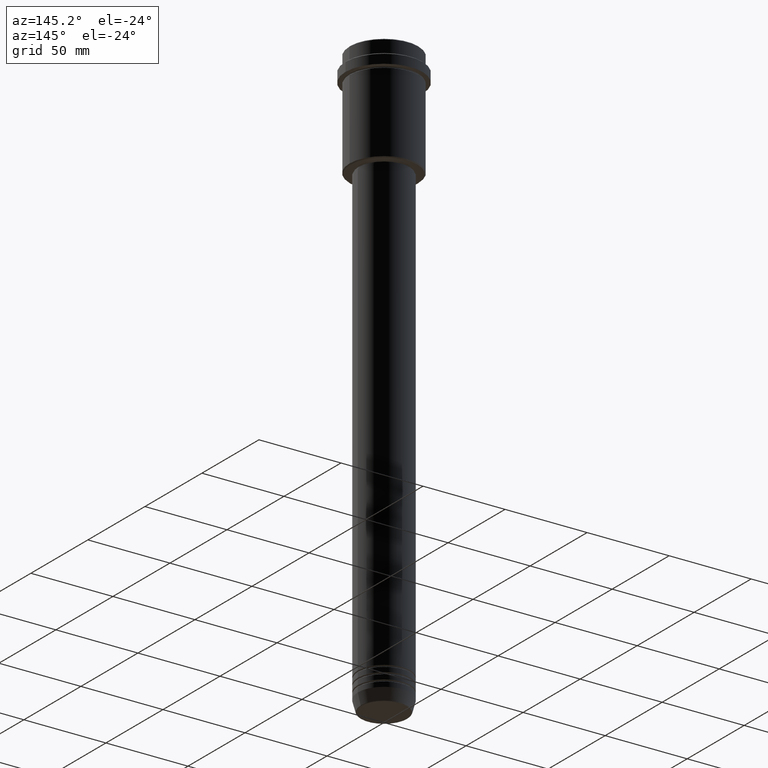
[diagram: clean part render]
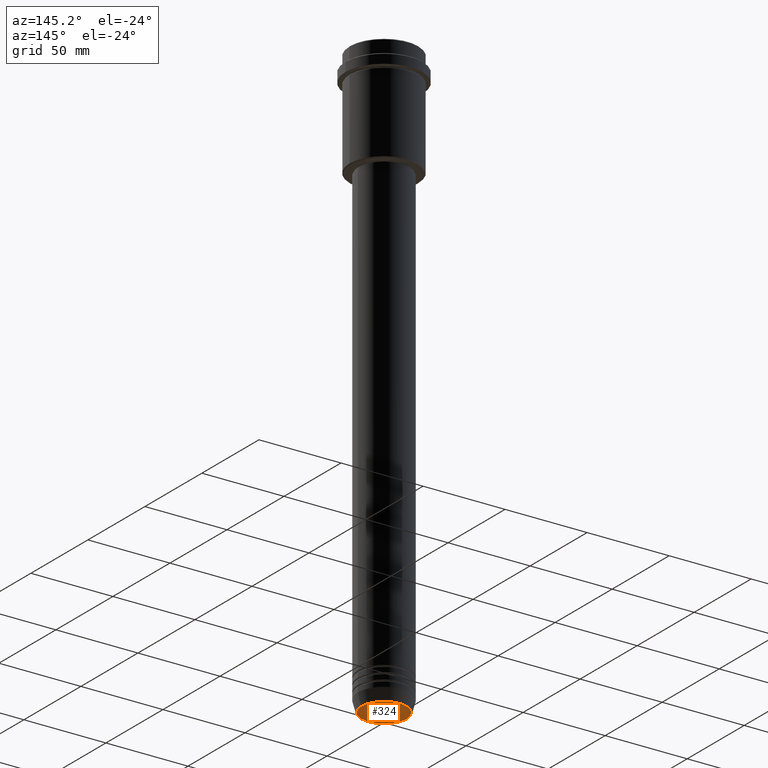
[diagram: same view with one face highlighted and labeled with its STEP entity id]
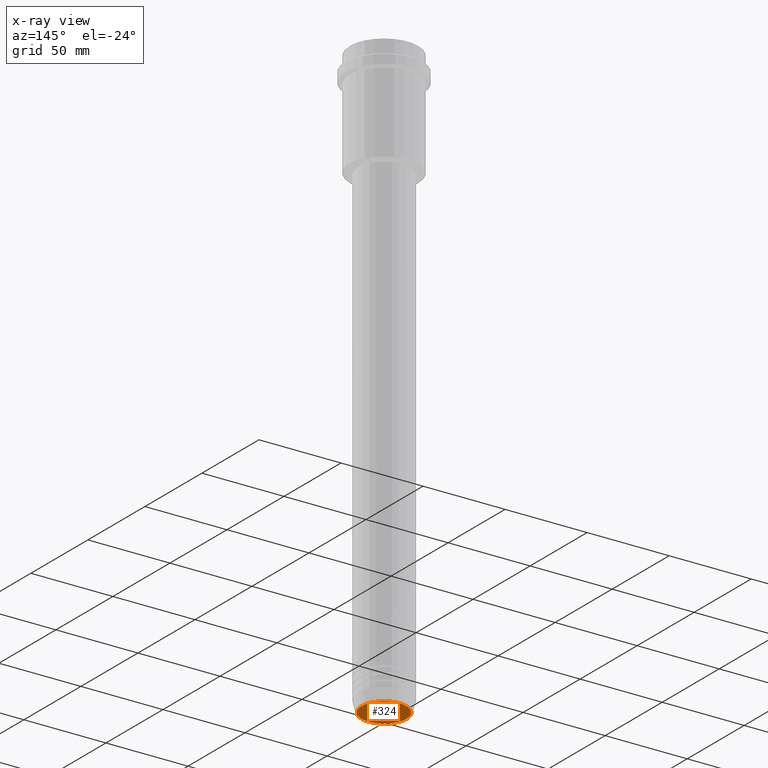
[diagram: x-ray of the same camera — body ghosted, the highlighted face saturated]
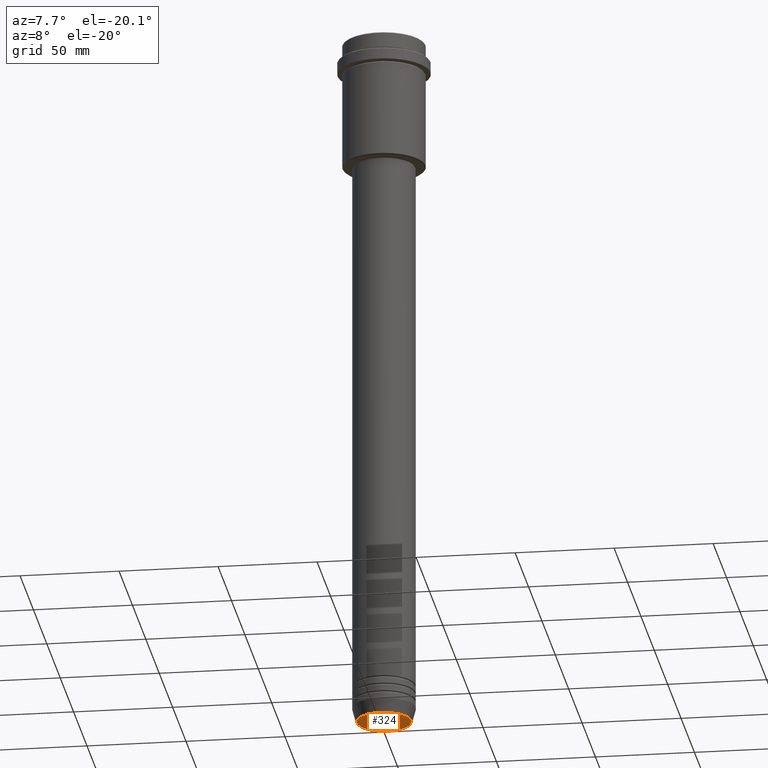
[diagram: same view with one face highlighted and labeled with its STEP entity id]
A machine part, auxiliary view. The second image highlights one B-rep face of the part: STEP entity #324.
The next image is the same camera in x-ray: the body ghosted, the highlighted face saturated — about 0% of this face is hidden behind the body in this view.
A second angle (auxiliary view) of the same face is appended — the face is thin or edge-on in the first view.
In plain terms, the highlighted planar face has unit normal (0, -0, 1).
Its self-contained STEP definition (entity closure, byte-faithful):
#36 = AXIS2_PLACEMENT_3D ( 'NONE', #718, #1377, #616 ) ;
#207 = ORIENTED_EDGE ( 'NONE', *, *, #1306, .T. ) ;
#296 = PLANE ( 'NONE',  #611 ) ;
#324 = ADVANCED_FACE ( 'NONE', ( #1378 ), #296, .F. ) ;
#345 = CARTESIAN_POINT ( 'NONE',  ( 13.74069215899265828, 0.000000000000000000, -360.0000000000000568 ) ) ;
#421 = CIRCLE ( 'NONE', #36, 13.74069215899265828 ) ;
#431 = ORIENTED_EDGE ( 'NONE', *, *, #758, .T. ) ;
#433 = CARTESIAN_POINT ( 'NONE',  ( 0.000000000000000000, 0.000000000000000000, -360.0000000000000568 ) ) ;
#582 = DIRECTION ( 'NONE',  ( 1.000000000000000000, 0.000000000000000000, 0.000000000000000000 ) ) ;
#611 = AXIS2_PLACEMENT_3D ( 'NONE', #733, #1063, #624 ) ;
#616 = DIRECTION ( 'NONE',  ( 1.000000000000000000, 0.000000000000000000, 0.000000000000000000 ) ) ;
#624 = DIRECTION ( 'NONE',  ( 1.000000000000000000, 0.000000000000000000, 0.000000000000000000 ) ) ;
#706 = CIRCLE ( 'NONE', #931, 13.74069215899265828 ) ;
#718 = CARTESIAN_POINT ( 'NONE',  ( 0.000000000000000000, 0.000000000000000000, -360.0000000000000568 ) ) ;
#733 = CARTESIAN_POINT ( 'NONE',  ( 0.000000000000000000, 0.000000000000000000, -360.0000000000000568 ) ) ;
#758 = EDGE_CURVE ( 'NONE', #1260, #878, #421, .T. ) ;
#878 = VERTEX_POINT ( 'NONE', #345 ) ;
#931 = AXIS2_PLACEMENT_3D ( 'NONE', #433, #1304, #582 ) ;
#977 = EDGE_LOOP ( 'NONE', ( #207, #431 ) ) ;
#983 = CARTESIAN_POINT ( 'NONE',  ( -13.74069215899265828, 1.712322416342415986E-15, -360.0000000000000568 ) ) ;
#1063 = DIRECTION ( 'NONE',  ( 0.000000000000000000, -0.000000000000000000, 1.000000000000000000 ) ) ;
#1260 = VERTEX_POINT ( 'NONE', #983 ) ;
#1304 = DIRECTION ( 'NONE',  ( 0.000000000000000000, 0.000000000000000000, -1.000000000000000000 ) ) ;
#1306 = EDGE_CURVE ( 'NONE', #878, #1260, #706, .T. ) ;
#1377 = DIRECTION ( 'NONE',  ( 0.000000000000000000, 0.000000000000000000, -1.000000000000000000 ) ) ;
#1378 = FACE_OUTER_BOUND ( 'NONE', #977, .T. ) ;